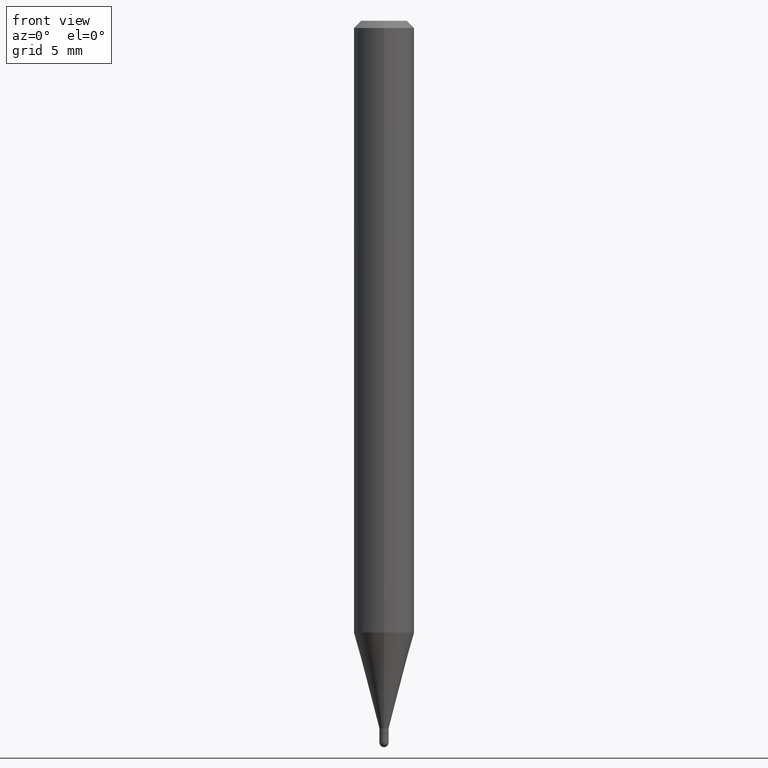
[diagram: clean part render]
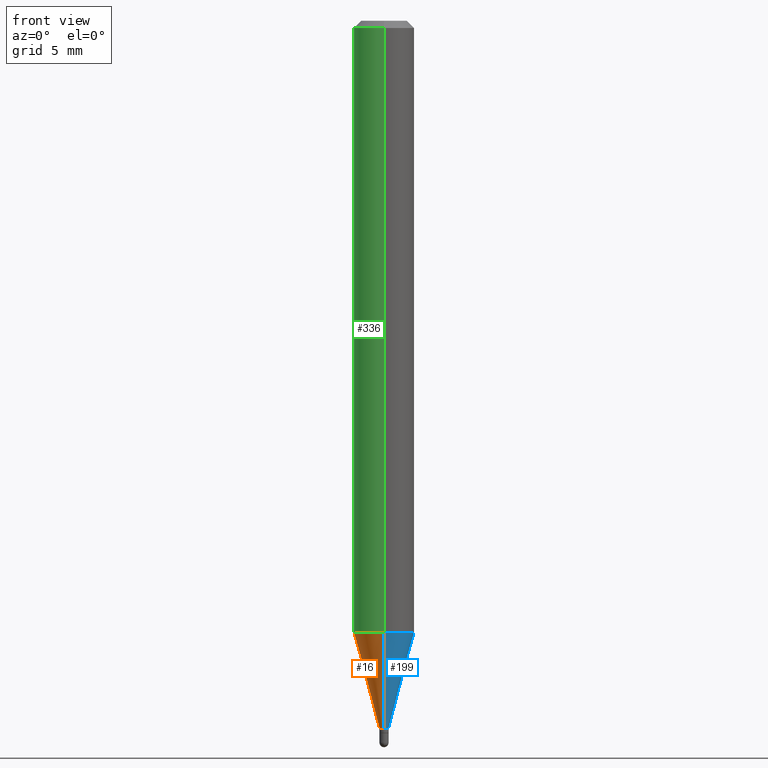
[diagram: same view with three faces highlighted in distinct colors, each labeled with its STEP entity id]
A machine part, front view with three faces highlighted in distinct colors.
Their STEP definitions:

[orange] entity #16 — the highlighted conical surface has half-angle 15 deg.
#1 = CARTESIAN_POINT ( 'NONE',  ( -6.633814543798517442E-17, -0.009500000000005297610, -1.461000000000000076 ) ) ;
#3 = VECTOR ( 'NONE', #189, 39.37007874015748143 ) ;
#10 = AXIS2_PLACEMENT_3D ( 'NONE', #50, #340, #135 ) ;
#11 = VECTOR ( 'NONE', #265, 39.37007874015748143 ) ;
#16 = ADVANCED_FACE ( 'NONE', ( #139 ), #418, .T. ) ;
#21 = AXIS2_PLACEMENT_3D ( 'NONE', #413, #81, #44 ) ;
#26 = VERTEX_POINT ( 'NONE', #263 ) ;
#35 = CARTESIAN_POINT ( 'NONE',  ( 6.750155989724662942E-17, 0.009499999999995095701, -1.461000000000000076 ) ) ;
#38 = DIRECTION ( 'NONE',  ( -6.982962677686265922E-15, -1.000000000000000000, 4.370956789862821150E-15 ) ) ;
#44 = DIRECTION ( 'NONE',  ( -6.982962677686265922E-15, -1.000000000000000000, 0.000000000000000000 ) ) ;
#50 = CARTESIAN_POINT ( 'NONE',  ( 3.572850640811267668E-29, -5.101024571026923519E-15, -1.461000000000000076 ) ) ;
#70 = EDGE_CURVE ( 'NONE', #173, #156, #419, .T. ) ;
#72 = LINE ( 'NONE', #35, #11 ) ;
#81 = DIRECTION ( 'NONE',  ( -2.445482984812640302E-29, 3.491461034241563044E-15, 1.000000000000000000 ) ) ;
#85 = DIRECTION ( 'NONE',  ( -2.445482984812640302E-29, 3.491461034241563044E-15, 1.000000000000000000 ) ) ;
#120 = CARTESIAN_POINT ( 'NONE',  ( -6.633814543798517442E-17, -0.009500000000005297610, -1.461000000000000076 ) ) ;
#135 = DIRECTION ( 'NONE',  ( -6.982962677686265922E-15, -1.000000000000000000, 0.000000000000000000 ) ) ;
#139 = FACE_OUTER_BOUND ( 'NONE', #400, .T. ) ;
#156 = VERTEX_POINT ( 'NONE', #1 ) ;
#157 = CARTESIAN_POINT ( 'NONE',  ( 3.089137303147875048E-29, -4.410418142487795065E-15, -1.263201307198851042 ) ) ;
#159 = ORIENTED_EDGE ( 'NONE', *, *, #70, .T. ) ;
#173 = VERTEX_POINT ( 'NONE', #433 ) ;
#186 = CIRCLE ( 'NONE', #387, 0.06250000000000000000 ) ;
#189 = DIRECTION ( 'NONE',  ( -1.807323732225330928E-15, -0.2588190451025182970, 0.9659258262890689783 ) ) ;
#242 = ORIENTED_EDGE ( 'NONE', *, *, #452, .T. ) ;
#263 = CARTESIAN_POINT ( 'NONE',  ( -4.364351673553607559E-16, -0.06250000000000441314, -1.263201307198850820 ) ) ;
#265 = DIRECTION ( 'NONE',  ( 1.839019923739601104E-15, 0.2588190451025250693, 0.9659258262890670910 ) ) ;
#271 = CARTESIAN_POINT ( 'NONE',  ( 4.440892098500932831E-16, 0.06249999999999557992, -1.263201307198851264 ) ) ;
#340 = DIRECTION ( 'NONE',  ( -2.445482984812640302E-29, 3.491461034241563044E-15, 1.000000000000000000 ) ) ;
#370 = EDGE_CURVE ( 'NONE', #466, #26, #186, .T. ) ;
#387 = AXIS2_PLACEMENT_3D ( 'NONE', #157, #85, #38 ) ;
#391 = ORIENTED_EDGE ( 'NONE', *, *, #435, .F. ) ;
#399 = LINE ( 'NONE', #120, #3 ) ;
#400 = EDGE_LOOP ( 'NONE', ( #391, #159, #242, #457 ) ) ;
#413 = CARTESIAN_POINT ( 'NONE',  ( 3.572850640811267668E-29, -5.101024571026923519E-15, -1.461000000000000076 ) ) ;
#418 = CONICAL_SURFACE ( 'NONE', #21, 0.009500000000000195788, 0.2617993877991502960 ) ;
#419 = CIRCLE ( 'NONE', #10, 0.009500000000000195788 ) ;
#433 = CARTESIAN_POINT ( 'NONE',  ( 2.557953848736701165E-16, 0.009499999999995095701, -1.461000000000000076 ) ) ;
#435 = EDGE_CURVE ( 'NONE', #173, #466, #72, .T. ) ;
#452 = EDGE_CURVE ( 'NONE', #156, #26, #399, .T. ) ;
#457 = ORIENTED_EDGE ( 'NONE', *, *, #370, .F. ) ;
#466 = VERTEX_POINT ( 'NONE', #271 ) ;

[blue] entity #199 — the highlighted conical surface has half-angle 15 deg.
#1 = CARTESIAN_POINT ( 'NONE',  ( -6.633814543798517442E-17, -0.009500000000005297610, -1.461000000000000076 ) ) ;
#3 = VECTOR ( 'NONE', #189, 39.37007874015748143 ) ;
#11 = VECTOR ( 'NONE', #265, 39.37007874015748143 ) ;
#26 = VERTEX_POINT ( 'NONE', #263 ) ;
#35 = CARTESIAN_POINT ( 'NONE',  ( 6.750155989724662942E-17, 0.009499999999995095701, -1.461000000000000076 ) ) ;
#72 = LINE ( 'NONE', #35, #11 ) ;
#77 = CIRCLE ( 'NONE', #198, 0.06250000000000000000 ) ;
#88 = CIRCLE ( 'NONE', #495, 0.009500000000000195788 ) ;
#120 = CARTESIAN_POINT ( 'NONE',  ( -6.633814543798517442E-17, -0.009500000000005297610, -1.461000000000000076 ) ) ;
#142 = DIRECTION ( 'NONE',  ( -2.445482984812640302E-29, 3.491461034241563044E-15, 1.000000000000000000 ) ) ;
#144 = DIRECTION ( 'NONE',  ( -2.445482984812640302E-29, 3.491461034241563044E-15, 1.000000000000000000 ) ) ;
#147 = ORIENTED_EDGE ( 'NONE', *, *, #414, .F. ) ;
#156 = VERTEX_POINT ( 'NONE', #1 ) ;
#158 = ORIENTED_EDGE ( 'NONE', *, *, #335, .T. ) ;
#173 = VERTEX_POINT ( 'NONE', #433 ) ;
#178 = DIRECTION ( 'NONE',  ( -6.982962677686265922E-15, -1.000000000000000000, 0.000000000000000000 ) ) ;
#189 = DIRECTION ( 'NONE',  ( -1.807323732225330928E-15, -0.2588190451025182970, 0.9659258262890689783 ) ) ;
#198 = AXIS2_PLACEMENT_3D ( 'NONE', #350, #142, #476 ) ;
#199 = ADVANCED_FACE ( 'NONE', ( #482 ), #395, .T. ) ;
#217 = DIRECTION ( 'NONE',  ( -2.445482984812640302E-29, 3.491461034241563044E-15, 1.000000000000000000 ) ) ;
#253 = AXIS2_PLACEMENT_3D ( 'NONE', #397, #144, #502 ) ;
#263 = CARTESIAN_POINT ( 'NONE',  ( -4.364351673553607559E-16, -0.06250000000000441314, -1.263201307198850820 ) ) ;
#265 = DIRECTION ( 'NONE',  ( 1.839019923739601104E-15, 0.2588190451025250693, 0.9659258262890670910 ) ) ;
#270 = EDGE_LOOP ( 'NONE', ( #158, #512, #147, #354 ) ) ;
#271 = CARTESIAN_POINT ( 'NONE',  ( 4.440892098500932831E-16, 0.06249999999999557992, -1.263201307198851264 ) ) ;
#335 = EDGE_CURVE ( 'NONE', #156, #173, #88, .T. ) ;
#341 = CARTESIAN_POINT ( 'NONE',  ( 3.572850640811267668E-29, -5.101024571026923519E-15, -1.461000000000000076 ) ) ;
#350 = CARTESIAN_POINT ( 'NONE',  ( 3.089137303147875048E-29, -4.410418142487795065E-15, -1.263201307198851042 ) ) ;
#354 = ORIENTED_EDGE ( 'NONE', *, *, #452, .F. ) ;
#395 = CONICAL_SURFACE ( 'NONE', #253, 0.009500000000000195788, 0.2617993877991502960 ) ;
#397 = CARTESIAN_POINT ( 'NONE',  ( 3.572850640811267668E-29, -5.101024571026923519E-15, -1.461000000000000076 ) ) ;
#399 = LINE ( 'NONE', #120, #3 ) ;
#414 = EDGE_CURVE ( 'NONE', #26, #466, #77, .T. ) ;
#433 = CARTESIAN_POINT ( 'NONE',  ( 2.557953848736701165E-16, 0.009499999999995095701, -1.461000000000000076 ) ) ;
#435 = EDGE_CURVE ( 'NONE', #173, #466, #72, .T. ) ;
#452 = EDGE_CURVE ( 'NONE', #156, #26, #399, .T. ) ;
#466 = VERTEX_POINT ( 'NONE', #271 ) ;
#476 = DIRECTION ( 'NONE',  ( -6.982962677686265922E-15, -1.000000000000000000, 4.370956789862821150E-15 ) ) ;
#482 = FACE_OUTER_BOUND ( 'NONE', #270, .T. ) ;
#495 = AXIS2_PLACEMENT_3D ( 'NONE', #341, #217, #178 ) ;
#502 = DIRECTION ( 'NONE',  ( -6.982962677686265922E-15, -1.000000000000000000, 0.000000000000000000 ) ) ;
#512 = ORIENTED_EDGE ( 'NONE', *, *, #435, .T. ) ;

[green] entity #336 — the highlighted cylindrical surface (edge-blend (fillet) strip) has radius 1.5875 mm, axis along (-0, 0, 1).
#6 = EDGE_LOOP ( 'NONE', ( #193, #278, #181, #230 ) ) ;
#13 = LINE ( 'NONE', #163, #473 ) ;
#26 = VERTEX_POINT ( 'NONE', #263 ) ;
#38 = DIRECTION ( 'NONE',  ( -6.982962677686265922E-15, -1.000000000000000000, 4.370956789862821150E-15 ) ) ;
#59 = CIRCLE ( 'NONE', #304, 0.06250000000000000000 ) ;
#61 = CYLINDRICAL_SURFACE ( 'NONE', #338, 0.06250000000000000000 ) ;
#85 = DIRECTION ( 'NONE',  ( -2.445482984812640302E-29, 3.491461034241563044E-15, 1.000000000000000000 ) ) ;
#92 = EDGE_CURVE ( 'NONE', #466, #235, #13, .T. ) ;
#102 = CARTESIAN_POINT ( 'NONE',  ( 0.000000000000000000, 0.000000000000000000, 0.000000000000000000 ) ) ;
#136 = CARTESIAN_POINT ( 'NONE',  ( 3.668224477218901983E-31, -5.237191551362261588E-17, -0.01499999999999976179 ) ) ;
#157 = CARTESIAN_POINT ( 'NONE',  ( 3.089137303147875048E-29, -4.410418142487795065E-15, -1.263201307198851042 ) ) ;
#163 = CARTESIAN_POINT ( 'NONE',  ( 4.440892098500625669E-16, 0.06250000000000000000, -2.182163146400976903E-16 ) ) ;
#181 = ORIENTED_EDGE ( 'NONE', *, *, #298, .T. ) ;
#186 = CIRCLE ( 'NONE', #387, 0.06250000000000000000 ) ;
#193 = ORIENTED_EDGE ( 'NONE', *, *, #92, .F. ) ;
#200 = LINE ( 'NONE', #326, #285 ) ;
#220 = DIRECTION ( 'NONE',  ( -2.445482984812640302E-29, 3.491461034241563044E-15, 1.000000000000000000 ) ) ;
#230 = ORIENTED_EDGE ( 'NONE', *, *, #331, .F. ) ;
#235 = VERTEX_POINT ( 'NONE', #312 ) ;
#263 = CARTESIAN_POINT ( 'NONE',  ( -4.364351673553607559E-16, -0.06250000000000441314, -1.263201307198850820 ) ) ;
#271 = CARTESIAN_POINT ( 'NONE',  ( 4.440892098500932831E-16, 0.06249999999999557992, -1.263201307198851264 ) ) ;
#278 = ORIENTED_EDGE ( 'NONE', *, *, #370, .T. ) ;
#285 = VECTOR ( 'NONE', #425, 39.37007874015748143 ) ;
#298 = EDGE_CURVE ( 'NONE', #26, #449, #200, .T. ) ;
#304 = AXIS2_PLACEMENT_3D ( 'NONE', #136, #220, #465 ) ;
#312 = CARTESIAN_POINT ( 'NONE',  ( 4.440892098500935790E-16, 0.06249999999999993755, -0.01499999999999997863 ) ) ;
#326 = CARTESIAN_POINT ( 'NONE',  ( -4.364351673553916201E-16, -0.06250000000000000000, 2.182163146400976903E-16 ) ) ;
#331 = EDGE_CURVE ( 'NONE', #235, #449, #59, .T. ) ;
#334 = DIRECTION ( 'NONE',  ( -2.445482984812640302E-29, 3.491461034241563044E-15, 1.000000000000000000 ) ) ;
#336 = ADVANCED_FACE ( 'NONE', ( #392 ), #61, .T. ) ;
#338 = AXIS2_PLACEMENT_3D ( 'NONE', #102, #347, #500 ) ;
#347 = DIRECTION ( 'NONE',  ( -2.445482984812640302E-29, 3.491461034241563044E-15, 1.000000000000000000 ) ) ;
#370 = EDGE_CURVE ( 'NONE', #466, #26, #186, .T. ) ;
#387 = AXIS2_PLACEMENT_3D ( 'NONE', #157, #85, #38 ) ;
#392 = FACE_OUTER_BOUND ( 'NONE', #6, .T. ) ;
#425 = DIRECTION ( 'NONE',  ( -2.445482984812640302E-29, 3.491461034241563044E-15, 1.000000000000000000 ) ) ;
#447 = CARTESIAN_POINT ( 'NONE',  ( -4.364351673553912750E-16, -0.06250000000000005551, -0.01499999999999954321 ) ) ;
#449 = VERTEX_POINT ( 'NONE', #447 ) ;
#465 = DIRECTION ( 'NONE',  ( -6.982962677686265922E-15, -1.000000000000000000, 3.483106191921935554E-15 ) ) ;
#466 = VERTEX_POINT ( 'NONE', #271 ) ;
#473 = VECTOR ( 'NONE', #334, 39.37007874015748143 ) ;
#500 = DIRECTION ( 'NONE',  ( -6.982962677686265922E-15, -1.000000000000000000, 3.491461034241563044E-15 ) ) ;